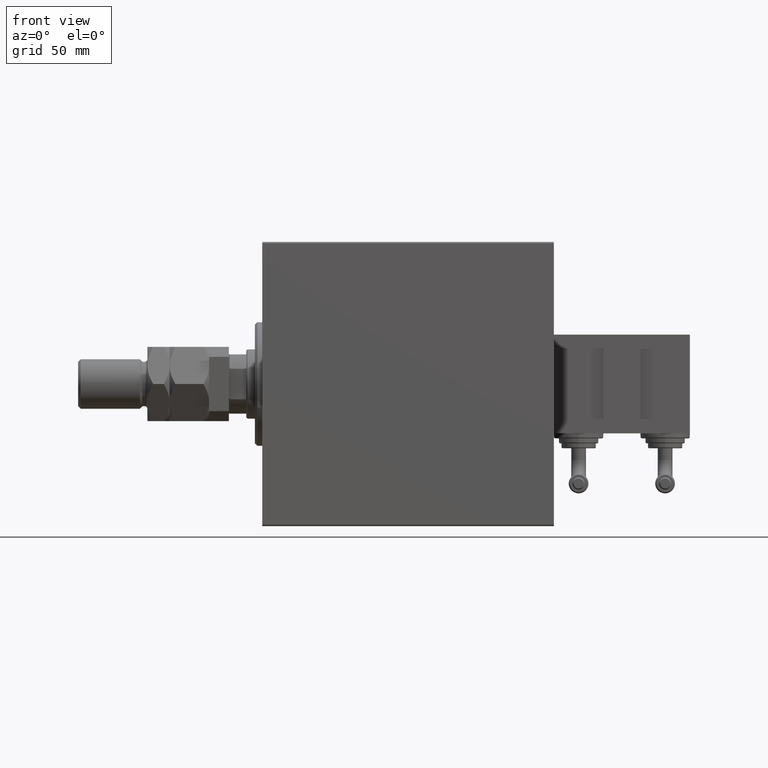
[diagram: clean part render]
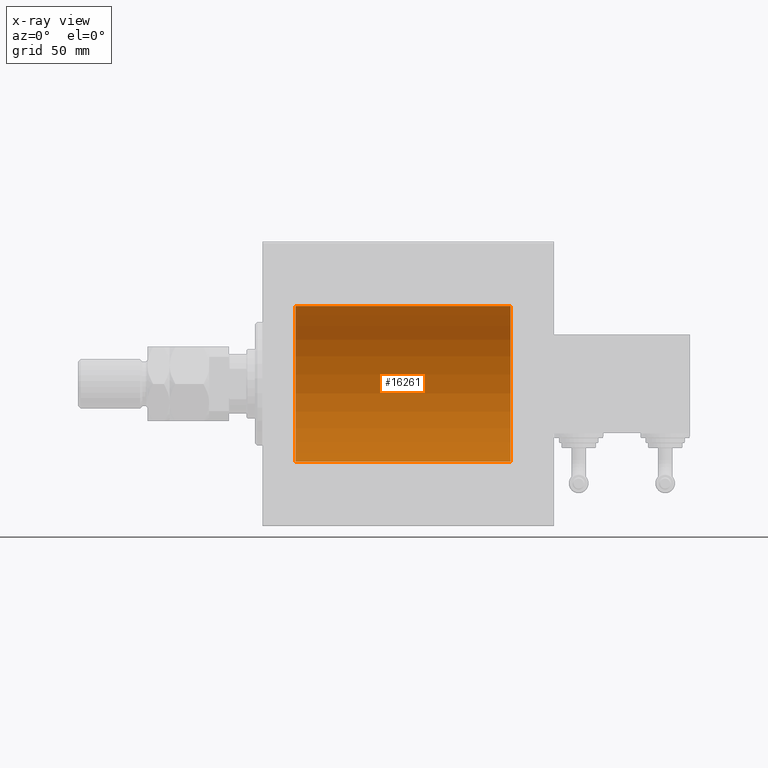
[diagram: x-ray — body ghosted, one internal face saturated and labeled with its STEP entity id]
A machine part, front view, then the same camera in x-ray: the body is ghosted and one INTERNAL B-rep face — a face not visible from any outside direction — is saturated and labeled: STEP entity #16261.
In plain terms, the highlighted cylindrical surface (partial cylindrical patch) has radius 31.5 mm, axis along (-1, -0, -0).
Its self-contained STEP definition (entity closure, byte-faithful):
#1007 = EDGE_CURVE ( 'NONE', #25895, #35079, #8062, .T. ) ;
#1152 = DIRECTION ( 'NONE',  ( 0.000000000000000000, 0.000000000000000000, 1.000000000000000000 ) ) ;
#3102 = DIRECTION ( 'NONE',  ( -1.000000000000000000, 0.000000000000000000, 0.000000000000000000 ) ) ;
#8062 = LINE ( 'NONE', #27232, #38102 ) ;
#9613 = EDGE_CURVE ( 'NONE', #51488, #25895, #23979, .T. ) ;
#11393 = LINE ( 'NONE', #34829, #35988 ) ;
#11586 = EDGE_CURVE ( 'NONE', #51488, #36055, #11393, .T. ) ;
#13455 = CARTESIAN_POINT ( 'NONE',  ( 13.49999999999999822, 0.000000000000000000, 0.000000000000000000 ) ) ;
#13717 = DIRECTION ( 'NONE',  ( -1.000000000000000000, 0.000000000000000000, 0.000000000000000000 ) ) ;
#13736 = CARTESIAN_POINT ( 'NONE',  ( 100.5000000000000000, 0.000000000000000000, 31.50000000000000000 ) ) ;
#16261 = ADVANCED_FACE ( 'NONE', ( #34139 ), #50355, .F. ) ;
#18226 = DIRECTION ( 'NONE',  ( 0.000000000000000000, 0.000000000000000000, 1.000000000000000000 ) ) ;
#21352 = DIRECTION ( 'NONE',  ( -1.000000000000000000, -0.000000000000000000, -0.000000000000000000 ) ) ;
#21396 = EDGE_LOOP ( 'NONE', ( #46701, #39178, #46253, #37142 ) ) ;
#23979 = CIRCLE ( 'NONE', #25715, 31.50000000000000000 ) ;
#24754 = AXIS2_PLACEMENT_3D ( 'NONE', #13455, #13717, #18226 ) ;
#25715 = AXIS2_PLACEMENT_3D ( 'NONE', #31298, #3102, #39289 ) ;
#25895 = VERTEX_POINT ( 'NONE', #52500 ) ;
#27232 = CARTESIAN_POINT ( 'NONE',  ( 100.5000000000000000, 3.857637417314162689E-15, -31.50000000000000000 ) ) ;
#27368 = DIRECTION ( 'NONE',  ( -1.000000000000000000, -0.000000000000000000, -0.000000000000000000 ) ) ;
#31298 = CARTESIAN_POINT ( 'NONE',  ( 100.5000000000000000, 0.000000000000000000, 0.000000000000000000 ) ) ;
#34139 = FACE_OUTER_BOUND ( 'NONE', #21396, .T. ) ;
#34829 = CARTESIAN_POINT ( 'NONE',  ( 100.5000000000000000, 0.000000000000000000, 31.50000000000000000 ) ) ;
#35079 = VERTEX_POINT ( 'NONE', #36708 ) ;
#35988 = VECTOR ( 'NONE', #27368, 1000.000000000000000 ) ;
#36055 = VERTEX_POINT ( 'NONE', #42806 ) ;
#36708 = CARTESIAN_POINT ( 'NONE',  ( 13.49999999999999822, 3.857637417314162689E-15, -31.50000000000000000 ) ) ;
#37142 = ORIENTED_EDGE ( 'NONE', *, *, #43894, .T. ) ;
#38102 = VECTOR ( 'NONE', #44496, 1000.000000000000000 ) ;
#39178 = ORIENTED_EDGE ( 'NONE', *, *, #9613, .F. ) ;
#39289 = DIRECTION ( 'NONE',  ( 0.000000000000000000, 0.000000000000000000, 1.000000000000000000 ) ) ;
#40239 = AXIS2_PLACEMENT_3D ( 'NONE', #41588, #21352, #1152 ) ;
#40899 = CIRCLE ( 'NONE', #24754, 31.50000000000000000 ) ;
#41588 = CARTESIAN_POINT ( 'NONE',  ( 100.5000000000000000, 0.000000000000000000, 0.000000000000000000 ) ) ;
#42806 = CARTESIAN_POINT ( 'NONE',  ( 13.49999999999999822, 0.000000000000000000, 31.50000000000000000 ) ) ;
#43894 = EDGE_CURVE ( 'NONE', #36055, #35079, #40899, .T. ) ;
#44496 = DIRECTION ( 'NONE',  ( -1.000000000000000000, -0.000000000000000000, -0.000000000000000000 ) ) ;
#46253 = ORIENTED_EDGE ( 'NONE', *, *, #11586, .T. ) ;
#46701 = ORIENTED_EDGE ( 'NONE', *, *, #1007, .F. ) ;
#50355 = CYLINDRICAL_SURFACE ( 'NONE', #40239, 31.50000000000000000 ) ;
#51488 = VERTEX_POINT ( 'NONE', #13736 ) ;
#52500 = CARTESIAN_POINT ( 'NONE',  ( 100.5000000000000000, 3.857637417314162689E-15, -31.50000000000000000 ) ) ;